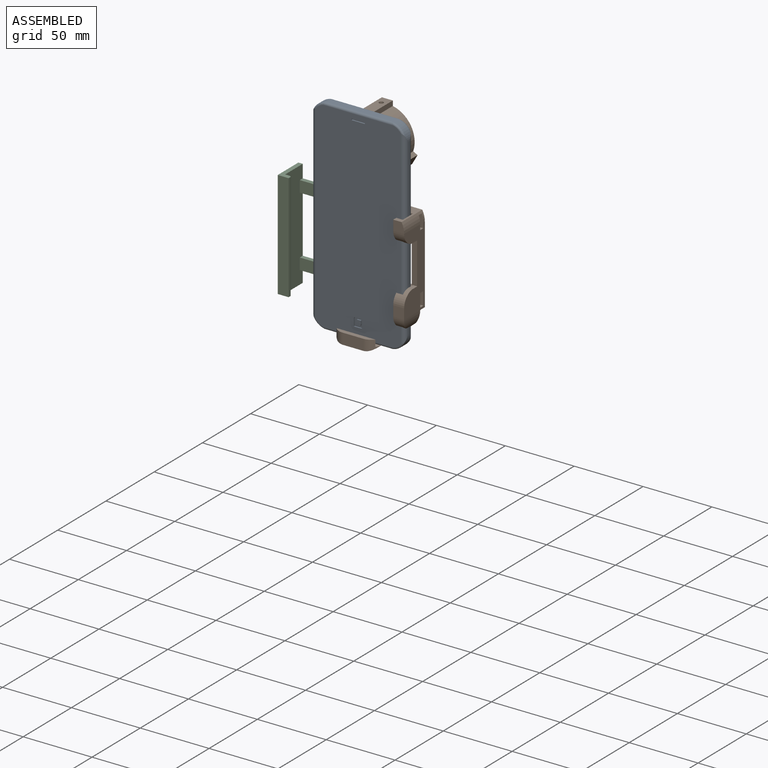
[diagram: assembled view]
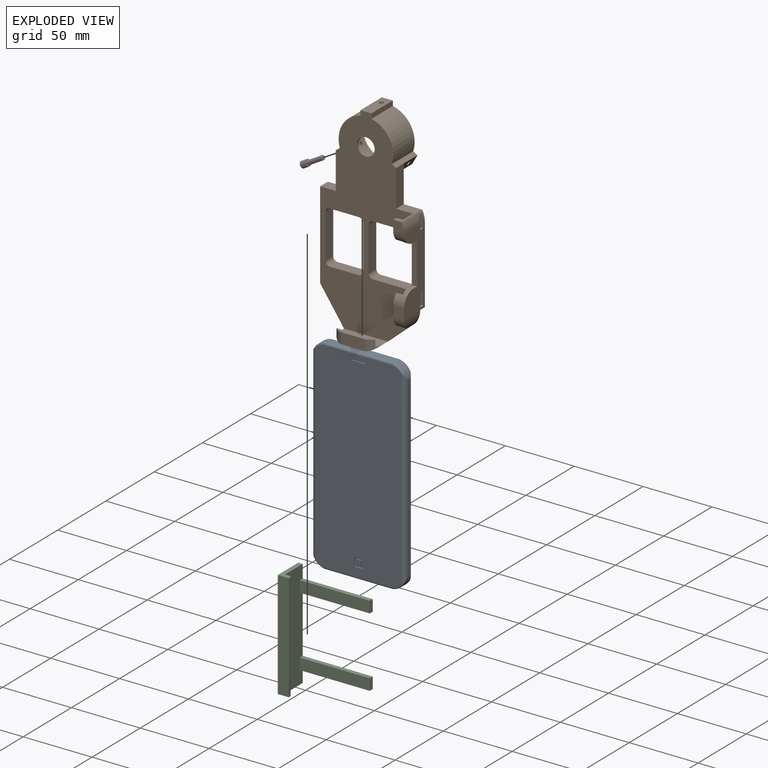
[diagram: exploded view]
GUIDED TOUR — MATED ASSEMBLY (Onshape document 3187856d703c1e89504fcf33, AutoMate assembly 3187856d703c1e89504fcf33_db7cc4cba60bde4dbe018889_d086f4b8acd3605cba12f17f_default)

This assembly has 4 components, labeled P0..P3 below (a component is one placed occurrence of a part; the same part can appear more than once), held together by 4 mates. A mate is a constraint between two components; its type names the relative motion it leaves free:
  CYLINDRICAL — leaves both rotation about and translation along the listed axis free,
  PLANAR — leaves sliding in the plane through the listed point (normal = the listed direction) and rotation about that normal free.
Axis/direction vectors are unit vectors and 'through' points are millimeter coordinates, both in the assembly's world frame.

MATES
  1. PLANAR "Planar 5": P2 <-> P1, direction (0.000, 0.000, 1.000) through (-28.50, 1.17, -36.06) mm
  2. CYLINDRICAL "Cylindrical 1": P3 <-> P1, axis (-0.866, 0.000, -0.500) through (-20.74, 11.40, 41.49) mm
  3. PLANAR "Planar 2": P0 <-> P1, direction (0.000, 0.000, -1.000) through (-3.01, -8.48, -71.77) mm
  4. PLANAR "Planar 1": P0 <-> P1, direction (0.000, 1.000, 0.000) through (-3.01, -4.48, 51.73) mm

ASSEMBLY ORDER
  1. P1 — the base component [order verified]
  2. P0 [order verified]
  3. P2 [order verified]
  4. P3 [order verified]
Order-tag legend:
  [order verified] — this step's position reverses a verified removal order: the component was checked to insert without passing through the ones already placed.

Of the 4 components, 2 carry the full construction recipe — the FeatureScript program that regenerates the part's solid from scratch; the rest are supplied as boundary geometry only.
Each toured component is shown spotlighted twice — in the assembled view, then in the exploded view, where a leader line traces a displaced component back to its assembled socket (saturated green if recipe-attached, orange if geometry-only; every other component desaturated gray) — followed by its recipe or geometry summary and the mates that hold it.
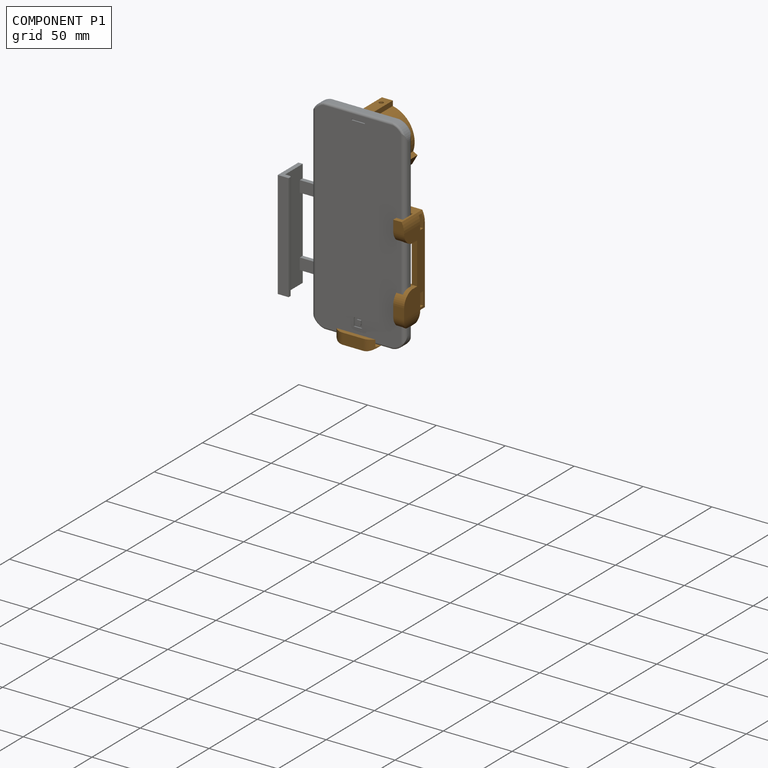
[diagram: component P1 — assembled]
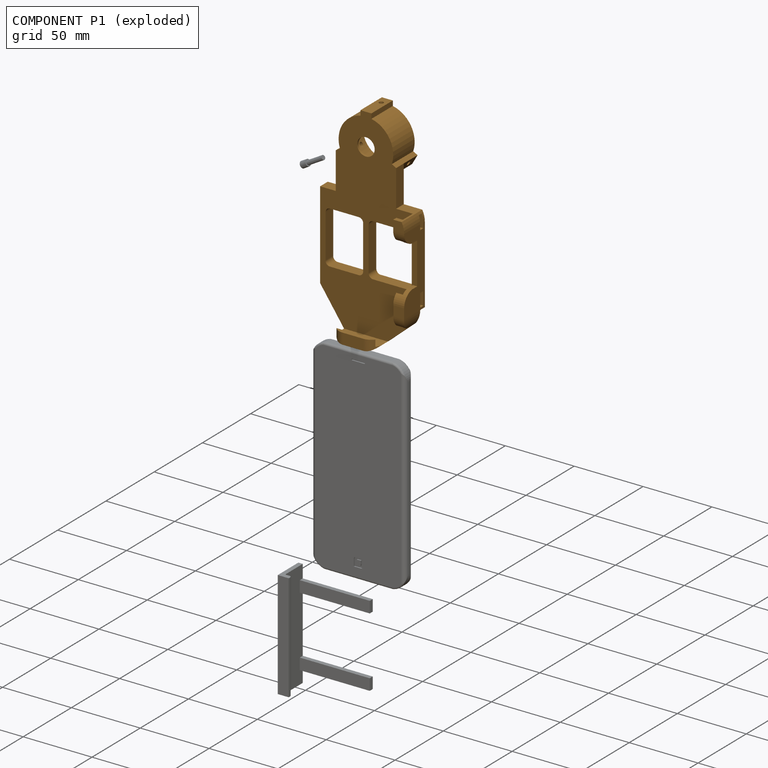
[diagram: component P1 — exploded]
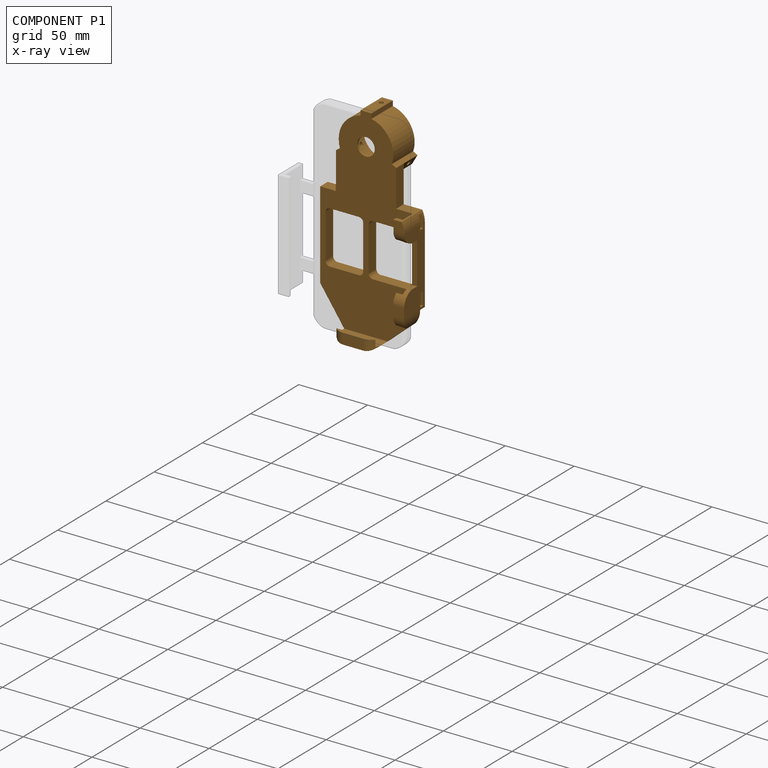
[diagram: component P1 — x-ray view]
COMPONENT P1 — geometry summary (no construction recipe available for this part):
  bounding box: 149.7 x 70.5 x 35.7 mm
  B-rep topology: 1 solid, 90 faces, 508 edges
  volume: 37477 mm^3 (10% of its bounding box)
Held by: PLANAR mate "Planar 5" to P2; CYLINDRICAL mate "Cylindrical 1" to P3; PLANAR mate "Planar 2" to P0; PLANAR mate "Planar 1" to P0.
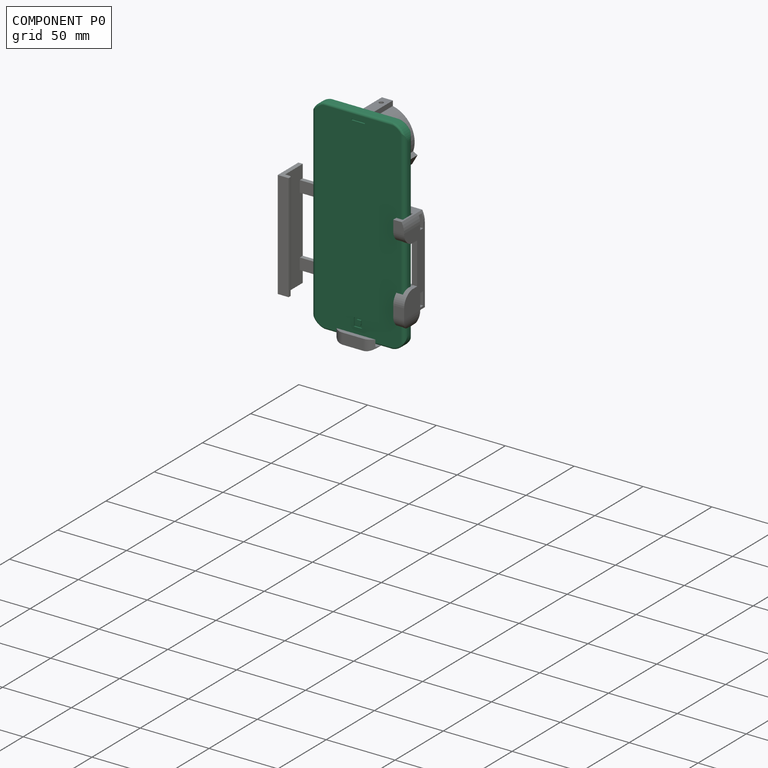
[diagram: component P0 — assembled]
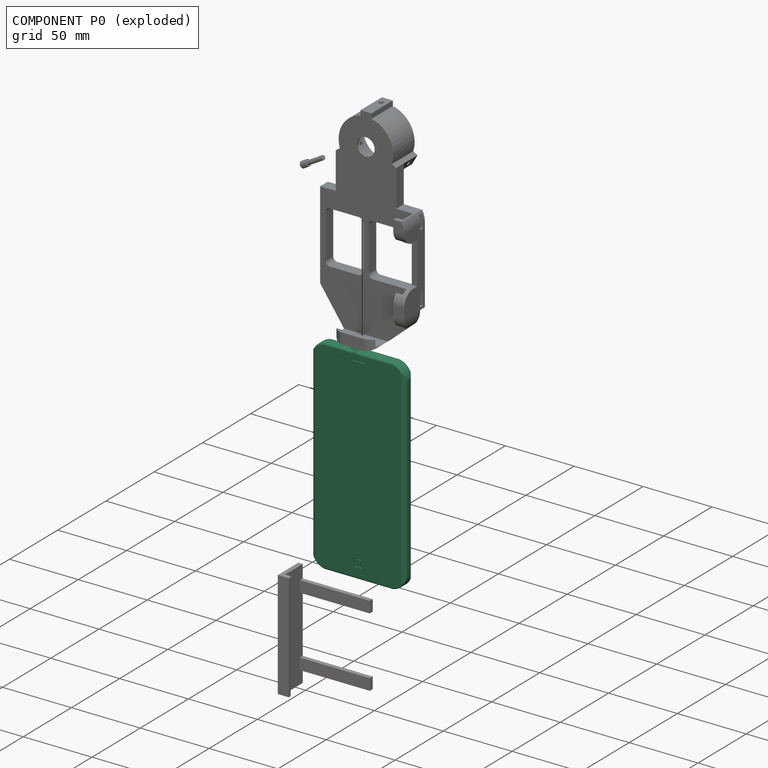
[diagram: component P0 — exploded]
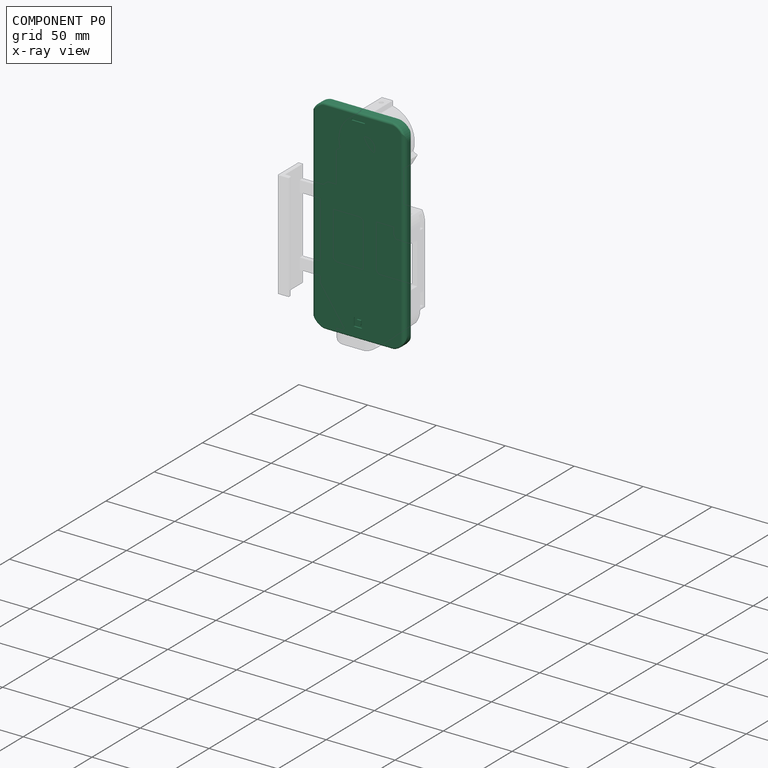
[diagram: component P0 — x-ray view]
COMPONENT P0 — recipe-attached (CADFS 00927391, mesh-verified: the recipe's output STEP matches this component's geometry to below the mesh-comparison resolution (tessellation chordal tolerance ~0.246 mm)).
Held by: PLANAR mate "Planar 2" to P1; PLANAR mate "Planar 1" to P1.
Construction recipe (FeatureScript — the CAD program that rebuilds this solid; sketch coordinates are in the units given by the * unit suffixes, e.g. mm):

FeatureScript 1511;
import(path : "onshape/std/geometry.fs", version : "1511.0");
import(path : "onshape/std/common.fs", version : "1511.0");
const mm = millimeter;
const VERTEX = EntityType.VERTEX;
const EDGE = EntityType.EDGE;
const FACE = EntityType.FACE;
const BODY = EntityType.BODY;
function v(x, y){return vector(x, y);}
function OD(order){return orderDisambiguation(order);}
function OSD(set){return originalSetDisambiguation(set);}
function TD(topology){return topologyDisambiguation(topology);}
function TDD(query){return trueDependencyDisambiguation(query);}
function sQuery(a, b, c) {return sketchEntityQuery(a, b, c);}

annotation { "Feature Type Name" : "Feature", "Feature Type Description" : "" }
export const myFeature = defineFeature(function(context is Context, id is Id, definition is map)
    precondition{}
    {
        {
            var Q0;
            Q0=qCreatedBy(makeId("Front.planeOp"),FACE);
            var sketch = newSketch(context, id + "F0", { "sketchPlane" : qUnion([Q0])});
            skLineSegment(sketch, "E0.bottom", {"start": v(34.05, 74.45) * mm, "end": v(-34.05, 74.45) * mm});
            skLineSegment(sketch, "E0.top", {"start": v(34.05, -74.45) * mm, "end": v(-34.05, -74.45) * mm});
            skLineSegment(sketch, "E0.left", {"start": v(34.05, 74.45) * mm, "end": v(34.05, -74.45) * mm});
            skLineSegment(sketch, "E0.right", {"start": v(-34.05, 74.45) * mm, "end": v(-34.05, -74.45) * mm});
            skPoint(sketch, "E0.middle", {"position": v(0, 0) * mm});
            skSolve(sketch);
        }
        {
            var Q0;
            Q0 = qSketchRegion(id + "F0", true);
            extrude(context, id + "F1", {"entities" : qUnion([Q0]), "depth" : 8 * mm, "offsetDistance" : 25.4 * mm});
        }
        {
            var Q0;
            Q0=makeQuery(id+"F1.opExtrude","SWEPT_EDGE",EDGE,{"disambiguationData":[OSD([sQuery(id+"F0.wireOp",EDGE,"E0.bottom"),sQuery(id+"F0.wireOp",EDGE,"E0.left")])]});
            var Q1;
            Q1=makeQuery(id+"F1.opExtrude","SWEPT_EDGE",EDGE,{"disambiguationData":[OSD([sQuery(id+"F0.wireOp",EDGE,"E0.bottom"),sQuery(id+"F0.wireOp",EDGE,"E0.right")])]});
            var Q2;
            Q2=makeQuery(id+"F1.opExtrude","SWEPT_EDGE",EDGE,{"disambiguationData":[OSD([sQuery(id+"F0.wireOp",EDGE,"E0.top"),sQuery(id+"F0.wireOp",EDGE,"E0.right")])]});
            var Q3;
            Q3=makeQuery(id+"F1.opExtrude","SWEPT_EDGE",EDGE,{"disambiguationData":[OSD([sQuery(id+"F0.wireOp",EDGE,"E0.top"),sQuery(id+"F0.wireOp",EDGE,"E0.left")])]});
            fillet(context, id + "F2", {"entities" : qUnion([Q0, Q1, Q2, Q3]), "radius" : 11.1 * mm, "tangentPropagation" : true, "allowEdgeOverflow" : false});
        }
        {
            var Q0;
            Q0=makeQuery(id+"F1.opExtrude","CAP_FACE",FACE,{"disambiguationData":[OSD([sQuery(id+"F0.wireOp",EDGE,"E0.bottom"),sQuery(id+"F0.wireOp",EDGE,"E0.top"),sQuery(id+"F0.wireOp",EDGE,"E0.left"),sQuery(id+"F0.wireOp",EDGE,"E0.right")])],"isStart":true});
            var sketch = newSketch(context, id + "F3", { "sketchPlane" : qUnion([Q0])});
            skLineSegment(sketch, "E1.bottom", {"start": v(4.76, 53.81) * mm, "end": v(-4.76, 53.81) * mm});
            skLineSegment(sketch, "E1.top", {"start": v(4.76, 44.29) * mm, "end": v(-4.76, 44.29) * mm});
            skLineSegment(sketch, "E1.left", {"start": v(4.76, 53.81) * mm, "end": v(4.76, 44.29) * mm});
            skLineSegment(sketch, "E1.right", {"start": v(-4.76, 53.81) * mm, "end": v(-4.76, 44.29) * mm});
            skPoint(sketch, "E1.middle", {"position": v(0, 49.05) * mm});
            skCircle(sketch, "E2", {"center": v(0, 49.05) * mm, "radius": 2.38 * mm});
            skSolve(sketch);
        }
        {
            var Q0;
            Q0 = qSketchRegion(id + "F3", true);
            extrude(context, id + "F4", {"entities" : qUnion([Q0]), "operationType" : NewBodyOperationType.REMOVE, "oppositeDirection" : true, "depth" : 0.8 * mm, "offsetDistance" : 25.4 * mm});
        }
        {
            var Q0;
            Q0=makeQuery(id+"F1.opExtrude","CAP_EDGE",EDGE,{"disambiguationData":[OSD([sQuery(id+"F0.wireOp",EDGE,"E0.left")])],"isStart":false});
            var Q1;
            Q1=makeQuery(id+"F1.opExtrude","CAP_EDGE",EDGE,{"disambiguationData":[OSD([sQuery(id+"F0.wireOp",EDGE,"E0.right")])],"isStart":false});
            var Q2;
            Q2=makeQuery(id+"F1.opExtrude","CAP_EDGE",EDGE,{"disambiguationData":[OSD([sQuery(id+"F0.wireOp",EDGE,"E0.right")])],"isStart":true});
            var Q3;
            Q3=makeQuery(id+"F1.opExtrude","CAP_EDGE",EDGE,{"disambiguationData":[OSD([sQuery(id+"F0.wireOp",EDGE,"E0.left")])],"isStart":true});
            fillet(context, id + "F5", {"entities" : qUnion([Q0, Q1, Q2, Q3]), "radius" : 3.17 * mm, "allowEdgeOverflow" : false});
        }
        {
            var Q0;
            Q0=makeQuery(id+"F1.opExtrude","CAP_EDGE",EDGE,{"disambiguationData":[OSD([sQuery(id+"F0.wireOp",EDGE,"E0.top")])],"isStart":false});
            var Q1;
            Q1=makeQuery(id+"F1.opExtrude","CAP_EDGE",EDGE,{"disambiguationData":[OSD([sQuery(id+"F0.wireOp",EDGE,"E0.top")])],"isStart":true});
            var Q2;
            Q2=makeQuery(id+"F1.opExtrude","CAP_EDGE",EDGE,{"disambiguationData":[OSD([sQuery(id+"F0.wireOp",EDGE,"E0.bottom")])],"isStart":false});
            var Q3;
            Q3=makeQuery(id+"F1.opExtrude","CAP_EDGE",EDGE,{"disambiguationData":[OSD([sQuery(id+"F0.wireOp",EDGE,"E0.bottom")])],"isStart":true});
            fillet(context, id + "F6", {"entities" : qUnion([Q0, Q1, Q2, Q3]), "radius" : 1.59 * mm, "allowEdgeOverflow" : false});
        }
        {
            var Q0;
            {var subQ0=sQuery(id+"F0.wireOp",EDGE,"E0.right");var subQ1=sQuery(id+"F0.wireOp",EDGE,"E0.bottom");Q0=makeQuery(id+"F2.opFillet","BLEND_EDGE",EDGE,{"blendedFrom":[makeQuery(id+"F1.opExtrude","SWEPT_EDGE",EDGE,{"disambiguationData":[OSD([subQ1,subQ0])]}),makeQuery(id+"F1.opExtrude","CAP_FACE",FACE,{"disambiguationData":[OSD([subQ1,sQuery(id+"F0.wireOp",EDGE,"E0.top"),sQuery(id+"F0.wireOp",EDGE,"E0.left"),subQ0])],"isStart":false})],"blendedInto":[makeQuery(id+"F1.opExtrude","CAP_FACE",FACE,{"disambiguationData":[OSD([subQ1,sQuery(id+"F0.wireOp",EDGE,"E0.top"),sQuery(id+"F0.wireOp",EDGE,"E0.left"),subQ0])],"isStart":false})]});}
            var Q1;
            {var subQ0=sQuery(id+"F0.wireOp",EDGE,"E0.right");var subQ1=sQuery(id+"F0.wireOp",EDGE,"E0.bottom");Q1=makeQuery(id+"F2.opFillet","BLEND_EDGE",EDGE,{"blendedFrom":[makeQuery(id+"F1.opExtrude","SWEPT_EDGE",EDGE,{"disambiguationData":[OSD([subQ1,subQ0])]}),makeQuery(id+"F1.opExtrude","CAP_FACE",FACE,{"disambiguationData":[OSD([subQ1,sQuery(id+"F0.wireOp",EDGE,"E0.top"),sQuery(id+"F0.wireOp",EDGE,"E0.left"),subQ0])],"isStart":true})],"blendedInto":[makeQuery(id+"F1.opExtrude","CAP_FACE",FACE,{"disambiguationData":[OSD([subQ1,sQuery(id+"F0.wireOp",EDGE,"E0.top"),sQuery(id+"F0.wireOp",EDGE,"E0.left"),subQ0])],"isStart":true})]});}
            var Q2;
            {var subQ0=sQuery(id+"F0.wireOp",EDGE,"E0.left");var subQ1=sQuery(id+"F0.wireOp",EDGE,"E0.bottom");Q2=makeQuery(id+"F2.opFillet","BLEND_EDGE",EDGE,{"blendedFrom":[makeQuery(id+"F1.opExtrude","SWEPT_EDGE",EDGE,{"disambiguationData":[OSD([subQ1,subQ0])]}),makeQuery(id+"F1.opExtrude","CAP_FACE",FACE,{"disambiguationData":[OSD([subQ1,sQuery(id+"F0.wireOp",EDGE,"E0.top"),subQ0,sQuery(id+"F0.wireOp",EDGE,"E0.right")])],"isStart":false})],"blendedInto":[makeQuery(id+"F1.opExtrude","CAP_FACE",FACE,{"disambiguationData":[OSD([subQ1,sQuery(id+"F0.wireOp",EDGE,"E0.top"),subQ0,sQuery(id+"F0.wireOp",EDGE,"E0.right")])],"isStart":false})]});}
            var Q3;
            {var subQ0=sQuery(id+"F0.wireOp",EDGE,"E0.left");var subQ1=sQuery(id+"F0.wireOp",EDGE,"E0.bottom");Q3=makeQuery(id+"F2.opFillet","BLEND_EDGE",EDGE,{"blendedFrom":[makeQuery(id+"F1.opExtrude","SWEPT_EDGE",EDGE,{"disambiguationData":[OSD([subQ1,subQ0])]}),makeQuery(id+"F1.opExtrude","CAP_FACE",FACE,{"disambiguationData":[OSD([subQ1,sQuery(id+"F0.wireOp",EDGE,"E0.top"),subQ0,sQuery(id+"F0.wireOp",EDGE,"E0.right")])],"isStart":true})],"blendedInto":[makeQuery(id+"F1.opExtrude","CAP_FACE",FACE,{"disambiguationData":[OSD([subQ1,sQuery(id+"F0.wireOp",EDGE,"E0.top"),subQ0,sQuery(id+"F0.wireOp",EDGE,"E0.right")])],"isStart":true})]});}
            var Q4;
            {var subQ0=sQuery(id+"F0.wireOp",EDGE,"E0.left");var subQ1=sQuery(id+"F0.wireOp",EDGE,"E0.top");Q4=makeQuery(id+"F2.opFillet","BLEND_EDGE",EDGE,{"blendedFrom":[makeQuery(id+"F1.opExtrude","SWEPT_EDGE",EDGE,{"disambiguationData":[OSD([subQ1,subQ0])]}),makeQuery(id+"F1.opExtrude","CAP_FACE",FACE,{"disambiguationData":[OSD([sQuery(id+"F0.wireOp",EDGE,"E0.bottom"),subQ1,subQ0,sQuery(id+"F0.wireOp",EDGE,"E0.right")])],"isStart":true})],"blendedInto":[makeQuery(id+"F1.opExtrude","CAP_FACE",FACE,{"disambiguationData":[OSD([sQuery(id+"F0.wireOp",EDGE,"E0.bottom"),subQ1,subQ0,sQuery(id+"F0.wireOp",EDGE,"E0.right")])],"isStart":true})]});}
            var Q5;
            {var subQ0=sQuery(id+"F0.wireOp",EDGE,"E0.left");var subQ1=sQuery(id+"F0.wireOp",EDGE,"E0.top");Q5=makeQuery(id+"F2.opFillet","BLEND_EDGE",EDGE,{"blendedFrom":[makeQuery(id+"F1.opExtrude","SWEPT_EDGE",EDGE,{"disambiguationData":[OSD([subQ1,subQ0])]}),makeQuery(id+"F1.opExtrude","CAP_FACE",FACE,{"disambiguationData":[OSD([sQuery(id+"F0.wireOp",EDGE,"E0.bottom"),subQ1,subQ0,sQuery(id+"F0.wireOp",EDGE,"E0.right")])],"isStart":false})],"blendedInto":[makeQuery(id+"F1.opExtrude","CAP_FACE",FACE,{"disambiguationData":[OSD([sQuery(id+"F0.wireOp",EDGE,"E0.bottom"),subQ1,subQ0,sQuery(id+"F0.wireOp",EDGE,"E0.right")])],"isStart":false})]});}
            var Q6;
            {var subQ0=sQuery(id+"F0.wireOp",EDGE,"E0.right");var subQ1=sQuery(id+"F0.wireOp",EDGE,"E0.top");Q6=makeQuery(id+"F2.opFillet","BLEND_EDGE",EDGE,{"blendedFrom":[makeQuery(id+"F1.opExtrude","SWEPT_EDGE",EDGE,{"disambiguationData":[OSD([subQ1,subQ0])]}),makeQuery(id+"F1.opExtrude","CAP_FACE",FACE,{"disambiguationData":[OSD([sQuery(id+"F0.wireOp",EDGE,"E0.bottom"),subQ1,sQuery(id+"F0.wireOp",EDGE,"E0.left"),subQ0])],"isStart":true})],"blendedInto":[makeQuery(id+"F1.opExtrude","CAP_FACE",FACE,{"disambiguationData":[OSD([sQuery(id+"F0.wireOp",EDGE,"E0.bottom"),subQ1,sQuery(id+"F0.wireOp",EDGE,"E0.left"),subQ0])],"isStart":true})]});}
            var Q7;
            {var subQ0=sQuery(id+"F0.wireOp",EDGE,"E0.right");var subQ1=sQuery(id+"F0.wireOp",EDGE,"E0.top");Q7=makeQuery(id+"F2.opFillet","BLEND_EDGE",EDGE,{"blendedFrom":[makeQuery(id+"F1.opExtrude","SWEPT_EDGE",EDGE,{"disambiguationData":[OSD([subQ1,subQ0])]}),makeQuery(id+"F1.opExtrude","CAP_FACE",FACE,{"disambiguationData":[OSD([sQuery(id+"F0.wireOp",EDGE,"E0.bottom"),subQ1,sQuery(id+"F0.wireOp",EDGE,"E0.left"),subQ0])],"isStart":false})],"blendedInto":[makeQuery(id+"F1.opExtrude","CAP_FACE",FACE,{"disambiguationData":[OSD([sQuery(id+"F0.wireOp",EDGE,"E0.bottom"),subQ1,sQuery(id+"F0.wireOp",EDGE,"E0.left"),subQ0])],"isStart":false})]});}
            fillet(context, id + "F7", {"entities" : qUnion([Q0, Q1, Q2, Q3, Q4, Q5, Q6, Q7]), "radius" : 1.27 * mm, "allowEdgeOverflow" : false});
        }
        {
            var Q0;
            Q0=makeQuery(id+"F4.boolean.opBoolean","COPY",EDGE,{"derivedFrom":makeQuery(id+"F4.opExtrude","SWEPT_EDGE",EDGE,{"disambiguationData":[OSD([sQuery(id+"F3.wireOp",EDGE,"E1.bottom"),sQuery(id+"F3.wireOp",EDGE,"E1.right")])]})});
            var Q1;
            Q1=makeQuery(id+"F4.boolean.opBoolean","COPY",EDGE,{"derivedFrom":makeQuery(id+"F4.opExtrude","SWEPT_EDGE",EDGE,{"disambiguationData":[OSD([sQuery(id+"F3.wireOp",EDGE,"E1.bottom"),sQuery(id+"F3.wireOp",EDGE,"E1.left")])]})});
            var Q2;
            Q2=makeQuery(id+"F4.boolean.opBoolean","COPY",EDGE,{"derivedFrom":makeQuery(id+"F4.opExtrude","SWEPT_EDGE",EDGE,{"disambiguationData":[OSD([sQuery(id+"F3.wireOp",EDGE,"E1.top"),sQuery(id+"F3.wireOp",EDGE,"E1.left")])]})});
            var Q3;
            Q3=makeQuery(id+"F4.boolean.opBoolean","COPY",EDGE,{"derivedFrom":makeQuery(id+"F4.opExtrude","SWEPT_EDGE",EDGE,{"disambiguationData":[OSD([sQuery(id+"F3.wireOp",EDGE,"E1.top"),sQuery(id+"F3.wireOp",EDGE,"E1.right")])]})});
            fillet(context, id + "F8", {"entities" : qUnion([Q0, Q1, Q2, Q3]), "radius" : 3.17 * mm, "tangentPropagation" : true, "allowEdgeOverflow" : false});
        }
        {
            var Q0;
            Q0=makeQuery(id+"F1.opExtrude","CAP_FACE",FACE,{"disambiguationData":[OSD([sQuery(id+"F0.wireOp",EDGE,"E0.bottom"),sQuery(id+"F0.wireOp",EDGE,"E0.top"),sQuery(id+"F0.wireOp",EDGE,"E0.left"),sQuery(id+"F0.wireOp",EDGE,"E0.right")])],"isStart":false});
            var sketch = newSketch(context, id + "F9", { "sketchPlane" : qUnion([Q0])});
            skLineSegment(sketch, "E3.bottom", {"start": v(3.18, -60.16) * mm, "end": v(-3.18, -60.16) * mm});
            skLineSegment(sketch, "E3.top", {"start": v(3.17, -66.51) * mm, "end": v(-3.18, -66.51) * mm});
            skLineSegment(sketch, "E3.left", {"start": v(3.18, -60.16) * mm, "end": v(3.18, -66.51) * mm});
            skLineSegment(sketch, "E3.right", {"start": v(-3.17, -60.16) * mm, "end": v(-3.17, -66.51) * mm});
            skPoint(sketch, "E3.middle", {"position": v(0, -63.34) * mm});
            skLineSegment(sketch, "E4.bottom", {"start": v(1.9, -61.43) * mm, "end": v(-1.9, -61.43) * mm});
            skLineSegment(sketch, "E4.top", {"start": v(1.9, -65.24) * mm, "end": v(-1.9, -65.24) * mm});
            skLineSegment(sketch, "E4.left", {"start": v(1.9, -61.43) * mm, "end": v(1.9, -65.24) * mm});
            skLineSegment(sketch, "E4.right", {"start": v(-1.9, -61.43) * mm, "end": v(-1.9, -65.24) * mm});
            skLineSegment(sketch, "E5.bottom", {"start": v(4.76, 69.69) * mm, "end": v(-4.76, 69.69) * mm});
            skLineSegment(sketch, "E5.top", {"start": v(4.76, 68.42) * mm, "end": v(-4.76, 68.42) * mm});
            skLineSegment(sketch, "E5.left", {"start": v(4.76, 69.69) * mm, "end": v(4.76, 68.42) * mm});
            skLineSegment(sketch, "E5.right", {"start": v(-4.76, 69.69) * mm, "end": v(-4.76, 68.42) * mm});
            skPoint(sketch, "E5.middle", {"position": v(0, 69.05) * mm});
            skSolve(sketch);
        }
        {
            var Q0;
            Q0 = qSketchRegion(id + "F9", true);
            extrude(context, id + "F10", {"entities" : qUnion([Q0]), "operationType" : NewBodyOperationType.REMOVE, "oppositeDirection" : true, "depth" : 0.8 * mm, "offsetDistance" : 25.4 * mm});
        }
        {
            var Q0;
            Q0=makeQuery(id+"F10.boolean.opBoolean","COPY",EDGE,{"derivedFrom":makeQuery(id+"F10.opExtrude","SWEPT_EDGE",EDGE,{"disambiguationData":[OSD([sQuery(id+"F9.wireOp",EDGE,"E3.bottom"),sQuery(id+"F9.wireOp",EDGE,"E3.right")])]})});
            var Q1;
            Q1=makeQuery(id+"F10.boolean.opBoolean","COPY",EDGE,{"derivedFrom":makeQuery(id+"F10.opExtrude","SWEPT_EDGE",EDGE,{"disambiguationData":[OSD([sQuery(id+"F9.wireOp",EDGE,"E4.bottom"),sQuery(id+"F9.wireOp",EDGE,"E4.right")])]})});
            var Q2;
            Q2=makeQuery(id+"F10.boolean.opBoolean","COPY",EDGE,{"derivedFrom":makeQuery(id+"F10.opExtrude","SWEPT_EDGE",EDGE,{"disambiguationData":[OSD([sQuery(id+"F9.wireOp",EDGE,"E3.top"),sQuery(id+"F9.wireOp",EDGE,"E3.left")])]})});
            var Q3;
            Q3=makeQuery(id+"F10.boolean.opBoolean","COPY",EDGE,{"derivedFrom":makeQuery(id+"F10.opExtrude","SWEPT_EDGE",EDGE,{"disambiguationData":[OSD([sQuery(id+"F9.wireOp",EDGE,"E4.top"),sQuery(id+"F9.wireOp",EDGE,"E4.left")])]})});
            fillet(context, id + "F11", {"entities" : qUnion([Q0, Q1, Q2, Q3]), "radius" : 1.27 * mm, "tangentPropagation" : true, "allowEdgeOverflow" : false});
        }
    });
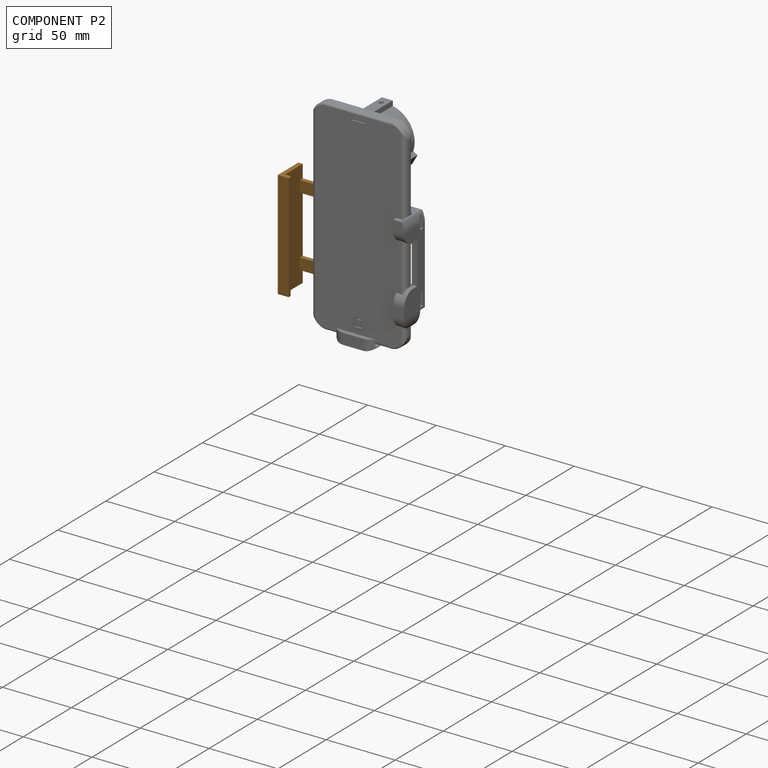
[diagram: component P2 — assembled]
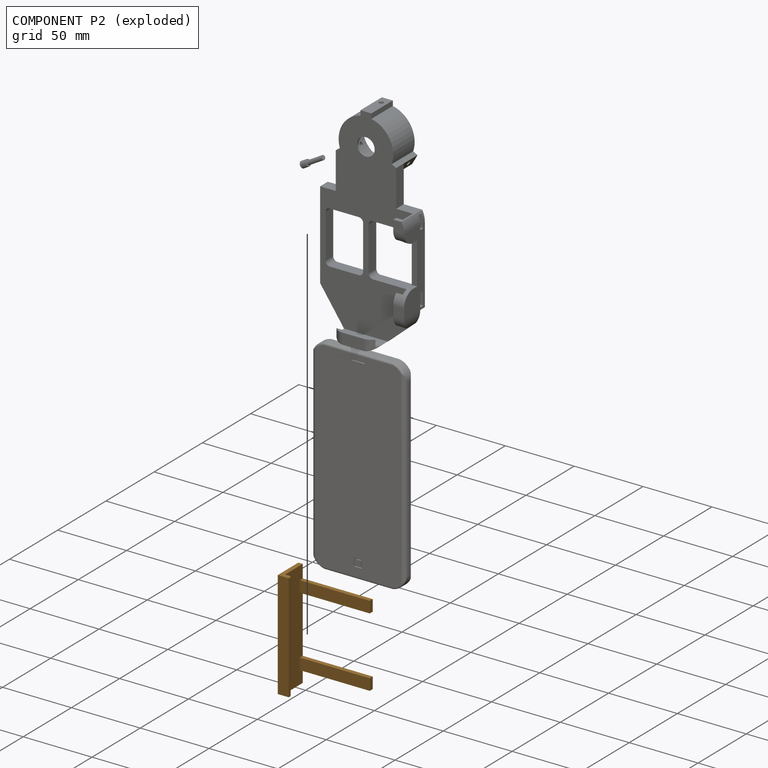
[diagram: component P2 — exploded]
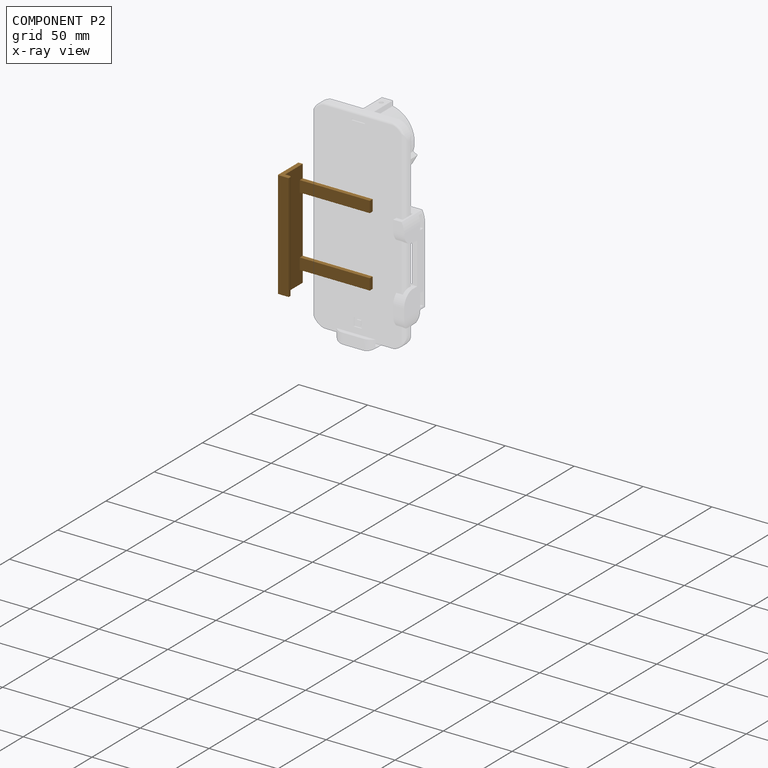
[diagram: component P2 — x-ray view]
COMPONENT P2 — geometry summary (no construction recipe available for this part):
  bounding box: 78.1 x 54.0 x 21.4 mm
  B-rep topology: 1 solid, 17 faces, 90 edges
  volume: 9002 mm^3 (10% of its bounding box)
  symmetry: mirror-symmetric across its x mid-plane
Held by: PLANAR mate "Planar 5" to P1.
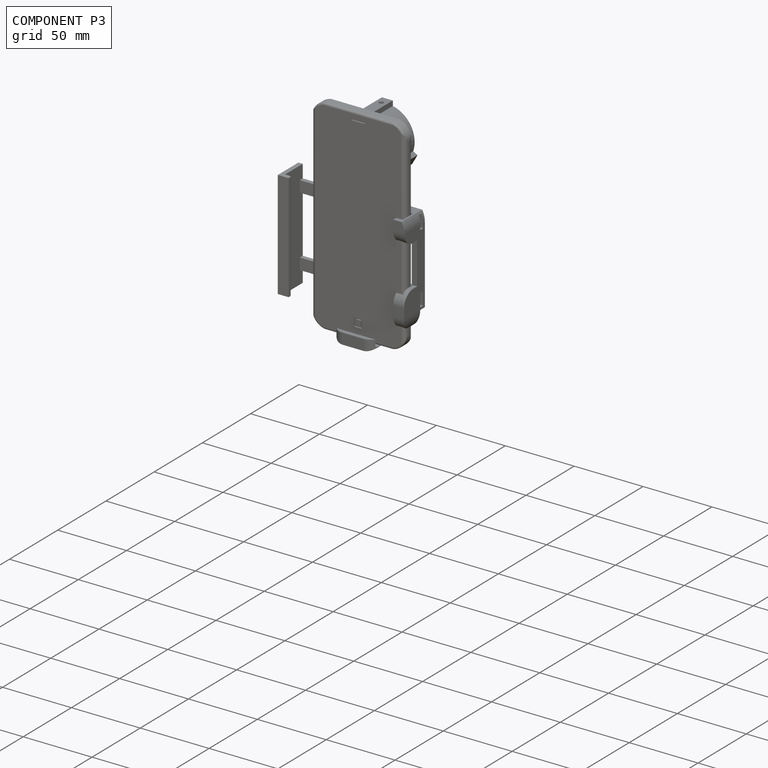
[diagram: component P3 — assembled]
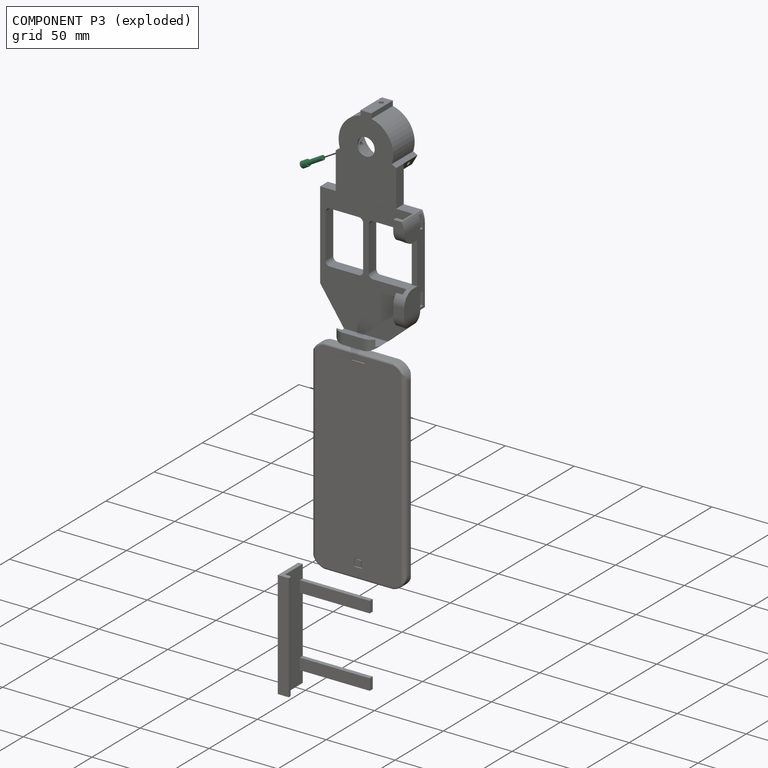
[diagram: component P3 — exploded]
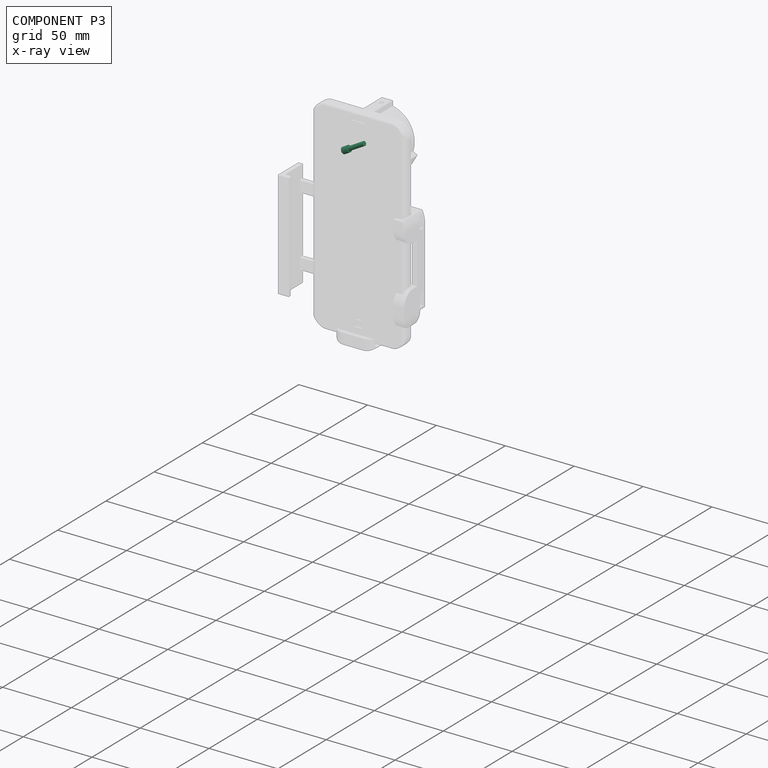
[diagram: component P3 — x-ray view]
COMPONENT P3 — recipe-attached (CADFS 00927392, mesh-verified: the recipe's output STEP matches this component's geometry to below the mesh-comparison resolution (tessellation chordal tolerance ~0.0281 mm)).
Held by: CYLINDRICAL mate "Cylindrical 1" to P1.
Construction recipe (FeatureScript — the CAD program that rebuilds this solid; sketch coordinates are in the units given by the * unit suffixes, e.g. mm):

FeatureScript 1511;
import(path : "onshape/std/geometry.fs", version : "1511.0");
import(path : "onshape/std/common.fs", version : "1511.0");
const mm = millimeter;
const VERTEX = EntityType.VERTEX;
const EDGE = EntityType.EDGE;
const FACE = EntityType.FACE;
const BODY = EntityType.BODY;
function v(x, y){return vector(x, y);}
function OD(order){return orderDisambiguation(order);}
function OSD(set){return originalSetDisambiguation(set);}
function TD(topology){return topologyDisambiguation(topology);}
function TDD(query){return trueDependencyDisambiguation(query);}
function sQuery(a, b, c) {return sketchEntityQuery(a, b, c);}

annotation { "Feature Type Name" : "Feature", "Feature Type Description" : "" }
export const myFeature = defineFeature(function(context is Context, id is Id, definition is map)
    precondition{}
    {
        {
            var Q0;
            Q0=qCreatedBy(makeId("Front.planeOp"),FACE);
            var sketch = newSketch(context, id + "F0", { "sketchPlane" : qUnion([Q0])});
            skCircle(sketch, "E0", {"center": v(0, 0) * mm, "radius": 1.59 * mm});
            skSolve(sketch);
        }
        {
            var Q0;
            Q0 = qSketchRegion(id + "F0", true);
            extrude(context, id + "F1", {"entities" : qUnion([Q0]), "oppositeDirection" : true, "depth" : 12.7 * mm, "offsetDistance" : 25.4 * mm});
        }
        {
            var Q0;
            Q0=makeQuery(id+"F1.opExtrude","CAP_FACE",FACE,{"disambiguationData":[OSD([sQuery(id+"F0.wireOp",EDGE,"E0")])],"isStart":true});
            var sketch = newSketch(context, id + "F2", { "sketchPlane" : qUnion([Q0])});
            skCircle(sketch, "E1", {"center": v(0, 0) * mm, "radius": 2.38 * mm});
            skSolve(sketch);
        }
        {
            var Q0;
            Q0 = qSketchRegion(id + "F2", true);
            extrude(context, id + "F3", {"entities" : qUnion([Q0]), "operationType" : NewBodyOperationType.ADD, "depth" : 4.76 * mm, "offsetDistance" : 25.4 * mm});
        }
    });
PROVENANCE & LICENSES
Assembly (occurrences, transforms, mates, per-part STEP geometry): AutoMate dataset, Zenodo record 7776208, CC0.
Construction recipes: CADFS (HuggingFace VladPyatov/CADFS, CC-BY-4.0, layered over the ABC dataset), FeatureScript reconstruction programs keyed by ABC model id.
Join: ABC meta listings map ABC model id -> Onshape documentId; within a shared document, parts are matched by geometric signature (bounding-box dims + volume at 0.1% relative tolerance, exact B-rep face/solid counts).
Verification: 2 of this assembly's 4 components carry a recipe attachment, and every attachment is mesh-verified: the CADFS STEP and the AutoMate member STEP were compared as meshes in their shared local frame (symmetric sampled-point-to-mesh distance); worst across the 2 attachments: below the mesh-comparison resolution (tessellation chordal tolerance ~0.246 mm) on a 164 mm part.
Renders: orthographic iso camera (az 35 / el 25); the floor grid conveys scale (grid pitch printed in each image; no ruler). In the exploded view each component is displaced by its stored offset vector: the offsets alone carry the explosion direction (mate normal/axis signs are not orientation cues and do not encode it), and separation distances are assigned per mate-chain, not proportionally to assembly-order depth.
